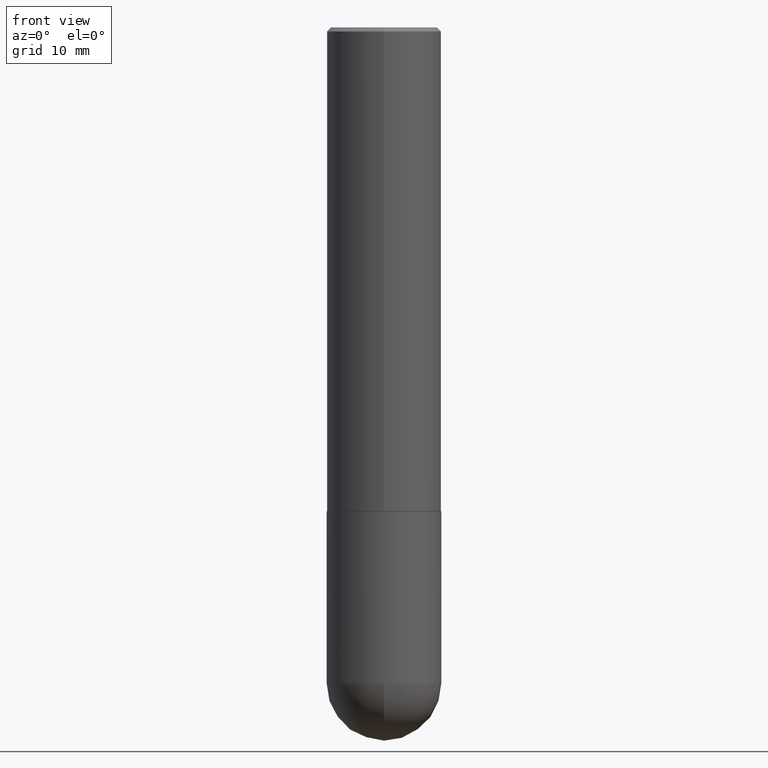
[diagram: clean part render]
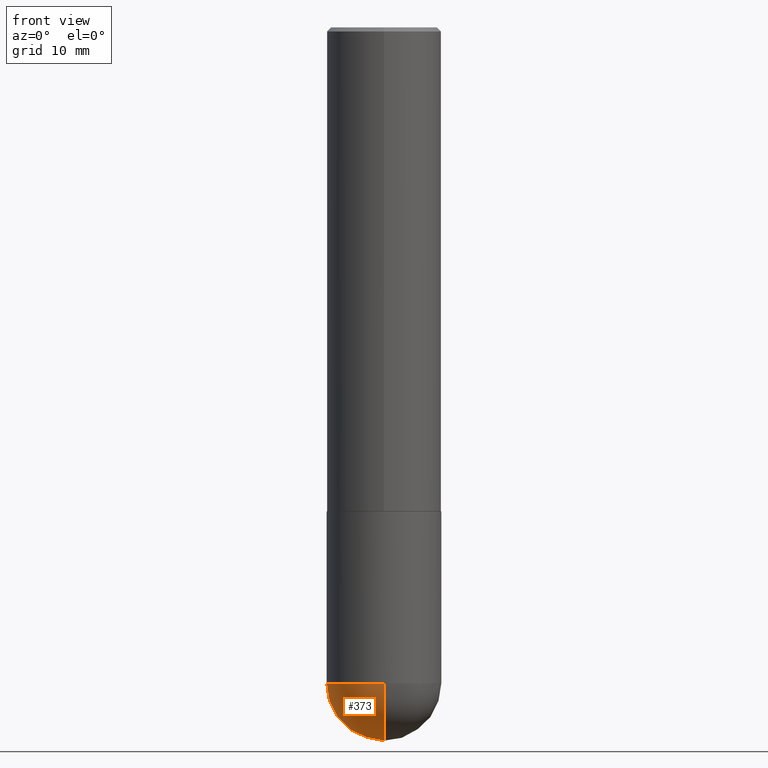
[diagram: same view with one face highlighted and labeled with its STEP entity id]
A machine part, front view. The second image highlights one B-rep face of the part: STEP entity #373.
In plain terms, the highlighted spherical surface has radius 7.1438 mm.
Its self-contained STEP definition (entity closure, byte-faithful):
#12 = AXIS2_PLACEMENT_3D ( 'NONE', #382, #92, #224 ) ;
#26 = EDGE_CURVE ( 'NONE', #115, #241, #134, .T. ) ;
#38 = CARTESIAN_POINT ( 'NONE',  ( -1.998401444325206042E-15, -0.2812500000000116573, -3.218749999999998668 ) ) ;
#62 = CARTESIAN_POINT ( 'NONE',  ( 8.240046819675677659E-29, -1.267714545847805119E-14, -3.500000000000000000 ) ) ;
#76 = VERTEX_POINT ( 'NONE', #38 ) ;
#80 = ORIENTED_EDGE ( 'NONE', *, *, #216, .T. ) ;
#85 = VERTEX_POINT ( 'NONE', #62 ) ;
#89 = EDGE_CURVE ( 'NONE', #85, #115, #236, .T. ) ;
#91 = DIRECTION ( 'NONE',  ( 6.982962677686265922E-15, 1.000000000000000000, -3.885294924322502955E-15 ) ) ;
#92 = DIRECTION ( 'NONE',  ( -2.445468806185136597E-29, 3.491481338843145583E-15, 1.000000000000000000 ) ) ;
#106 = EDGE_CURVE ( 'NONE', #241, #76, #294, .T. ) ;
#115 = VERTEX_POINT ( 'NONE', #407 ) ;
#118 = EDGE_LOOP ( 'NONE', ( #206, #80, #403, #238 ) ) ;
#126 = AXIS2_PLACEMENT_3D ( 'NONE', #250, #278, #131 ) ;
#131 = DIRECTION ( 'NONE',  ( 6.982962677686265133E-15, 1.000000000000000000, 0.000000000000000000 ) ) ;
#134 = CIRCLE ( 'NONE', #188, 0.2812500000000000555 ) ;
#147 = FACE_OUTER_BOUND ( 'NONE', #118, .T. ) ;
#161 = CARTESIAN_POINT ( 'NONE',  ( 7.871352719908407300E-29, -1.123820555940137375E-14, -3.218749999999999556 ) ) ;
#174 = AXIS2_PLACEMENT_3D ( 'NONE', #267, #336, #91 ) ;
#188 = AXIS2_PLACEMENT_3D ( 'NONE', #161, #318, #348 ) ;
#199 = CARTESIAN_POINT ( 'NONE',  ( -0.2812500000000000555, -7.766835425251639371E-15, -3.218749999999999556 ) ) ;
#206 = ORIENTED_EDGE ( 'NONE', *, *, #89, .F. ) ;
#208 = SPHERICAL_SURFACE ( 'NONE', #174, 0.2812500000000003331 ) ;
#216 = EDGE_CURVE ( 'NONE', #85, #76, #226, .T. ) ;
#224 = DIRECTION ( 'NONE',  ( 1.000000000000000000, -6.982962677686268288E-15, 0.000000000000000000 ) ) ;
#226 = CIRCLE ( 'NONE', #272, 0.2812500000000003331 ) ;
#236 = CIRCLE ( 'NONE', #126, 0.2812500000000003331 ) ;
#238 = ORIENTED_EDGE ( 'NONE', *, *, #26, .F. ) ;
#241 = VERTEX_POINT ( 'NONE', #199 ) ;
#250 = CARTESIAN_POINT ( 'NONE',  ( 7.540232941994521053E-29, -1.171238792754142562E-14, -3.218749999999999556 ) ) ;
#260 = CARTESIAN_POINT ( 'NONE',  ( 7.540232941994521053E-29, -1.171238792754142562E-14, -3.218749999999999556 ) ) ;
#267 = CARTESIAN_POINT ( 'NONE',  ( 7.540232941994521053E-29, -1.171238792754142562E-14, -3.218749999999999556 ) ) ;
#272 = AXIS2_PLACEMENT_3D ( 'NONE', #260, #354, #319 ) ;
#278 = DIRECTION ( 'NONE',  ( 1.000000000000000000, -6.982962677686265922E-15, 4.883557194083112340E-29 ) ) ;
#294 = CIRCLE ( 'NONE', #12, 0.2812500000000000555 ) ;
#318 = DIRECTION ( 'NONE',  ( -2.445468806185136597E-29, 3.491481338843145583E-15, 1.000000000000000000 ) ) ;
#319 = DIRECTION ( 'NONE',  ( -7.105427357601001859E-15, -1.000000000000000000, 0.000000000000000000 ) ) ;
#336 = DIRECTION ( 'NONE',  ( -1.000000000000000000, 6.982962677686265922E-15, -4.883557194083112901E-29 ) ) ;
#348 = DIRECTION ( 'NONE',  ( 1.000000000000000000, -6.982962677686268288E-15, 0.000000000000000000 ) ) ;
#354 = DIRECTION ( 'NONE',  ( -1.000000000000000000, 7.105427357601001070E-15, -4.926315508542082329E-29 ) ) ;
#373 = ADVANCED_FACE ( 'NONE', ( #147 ), #208, .T. ) ;
#382 = CARTESIAN_POINT ( 'NONE',  ( 7.871352719908407300E-29, -1.123820555940137375E-14, -3.218749999999999556 ) ) ;
#403 = ORIENTED_EDGE ( 'NONE', *, *, #106, .F. ) ;
#407 = CARTESIAN_POINT ( 'NONE',  ( 1.963958253099340610E-15, 0.2812499999999886757, -3.218750000000000888 ) ) ;